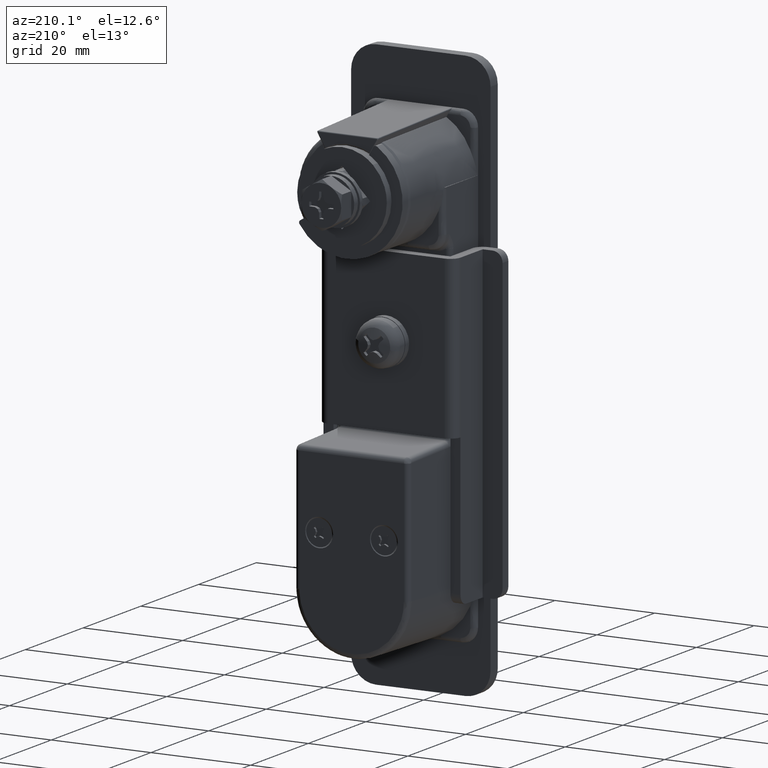
[diagram: clean part render]
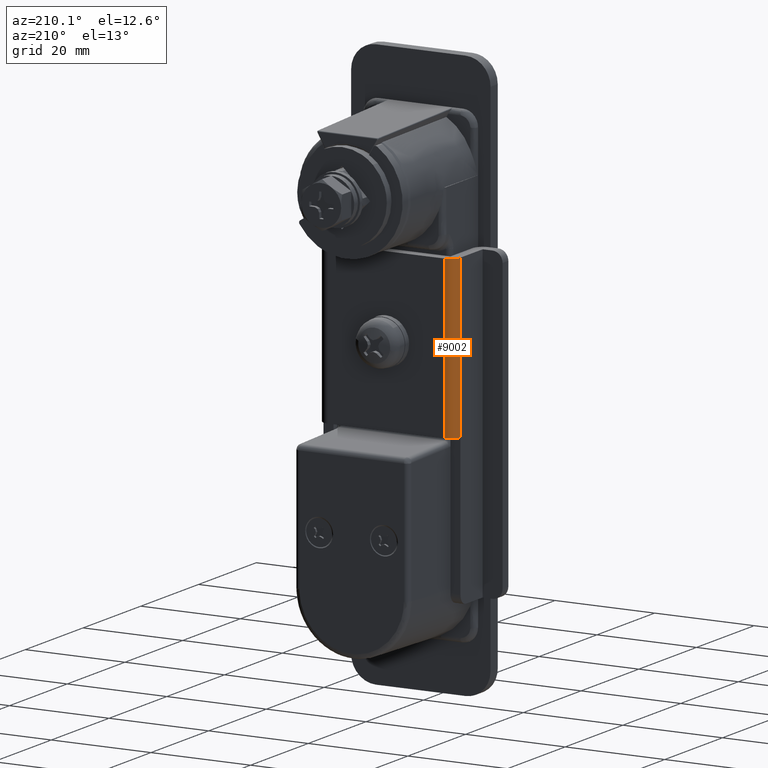
[diagram: same view with one face highlighted and labeled with its STEP entity id]
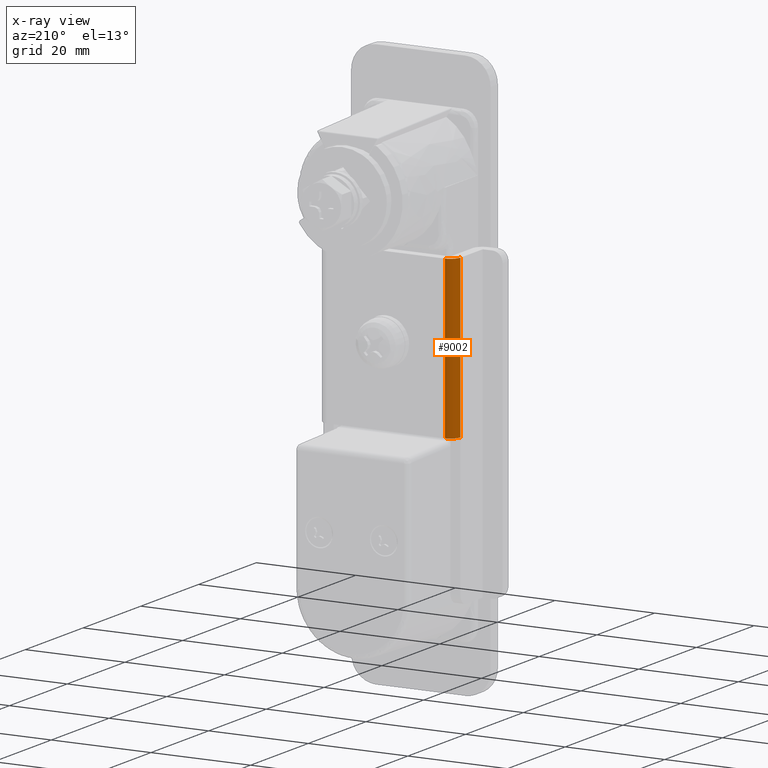
[diagram: x-ray of the same camera — body ghosted, the highlighted face saturated]
A machine part, auxiliary view. The second image highlights one B-rep face of the part: STEP entity #9002.
The next image is the same camera in x-ray: the body ghosted, the highlighted face saturated — about 0% of this face is hidden behind the body in this view.
In plain terms, the highlighted face is a freeform B-spline surface patch.
Its self-contained STEP definition (entity closure, byte-faithful):
#8731=CARTESIAN_POINT('',(-13.749599999999999,10.999994665527341,-44.500000000000000));
#8732=VERTEX_POINT('',#8731);
#8757=CARTESIAN_POINT('',(-13.749600000000120,10.999994665527341,-12.500000000000000));
#8758=VERTEX_POINT('',#8757);
#8764=CARTESIAN_POINT('',(-13.749599999999999,10.999994665527341,-44.500000000000000));
#8765=CARTESIAN_POINT('',(-13.749600000000120,10.999994665527341,-12.500000000000000));
#8766=QUASI_UNIFORM_CURVE('',1,(#8764,#8765),.UNSPECIFIED.,.F.,.U.);
#8767=EDGE_CURVE('',#8732,#8758,#8766,.T.);
#8953=CARTESIAN_POINT('',(-13.748914649951230,10.947640768911601,-45.300000000000011));
#8954=CARTESIAN_POINT('',(-13.748914649951230,10.947640768911601,-11.680000000000000));
#8955=CARTESIAN_POINT('',(-13.806584520332637,13.149964266636786,-45.300000000000004));
#8956=CARTESIAN_POINT('',(-13.806584520332637,13.149964266636786,-11.680000000000000));
#8957=CARTESIAN_POINT('',(-11.608959848748146,12.995043624288968,-45.300000000000011));
#8958=CARTESIAN_POINT('',(-11.608959848748146,12.995043624288968,-11.680000000000003));
#8966=(BOUNDED_SURFACE()B_SPLINE_SURFACE(1,2,((#8953,#8955,#8957),(#8954,#8956,#8958)),.UNSPECIFIED.,.F.,.F.,.U.)B_SPLINE_SURFACE_WITH_KNOTS((2,2),(3,3),(0.0,33.620000000000012),(0.0,3.542284688176743),.UNSPECIFIED.)GEOMETRIC_REPRESENTATION_ITEM()RATIONAL_B_SPLINE_SURFACE(((1.0,0.670944223154768,0.996392648609106),(1.0,0.670944223154768,0.996392648609106)))REPRESENTATION_ITEM('')SURFACE());
#8967=CARTESIAN_POINT('',(-11.749600000000120,12.999994665527341,-44.500000000000000));
#8968=VERTEX_POINT('',#8967);
#8969=CARTESIAN_POINT('',(-11.749600000000120,12.999994665527341,-12.500000000000000));
#8970=VERTEX_POINT('',#8969);
#8971=CARTESIAN_POINT('',(-11.749600000000120,12.999994665527341,-44.500000000000000));
#8972=CARTESIAN_POINT('',(-11.749600000000120,12.999994665527341,-12.500000000000000));
#8973=QUASI_UNIFORM_CURVE('',1,(#8971,#8972),.UNSPECIFIED.,.F.,.U.);
#8974=EDGE_CURVE('',#8968,#8970,#8973,.T.);
#8975=ORIENTED_EDGE('',*,*,#8974,.F.);
#8976=CARTESIAN_POINT('',(-11.749600000000120,12.999994665527341,-44.500000000000000));
#8977=CARTESIAN_POINT('',(-11.995075775342160,13.000219803783180,-44.500000000000007));
#8978=CARTESIAN_POINT('',(-12.387592611964241,12.926736629066710,-44.500000000000057));
#8979=CARTESIAN_POINT('',(-12.899045135724410,12.661371421685910,-44.499999999999943));
#8980=CARTESIAN_POINT('',(-13.294925219328320,12.311408009139781,-44.499999999999993));
#8981=CARTESIAN_POINT('',(-13.648911655863991,11.752418812758879,-44.500000000000377));
#8982=CARTESIAN_POINT('',(-13.749973906542129,11.278223226658060,-44.499999999999737));
#8983=CARTESIAN_POINT('',(-13.749599999999999,10.999994665527341,-44.500000000000000));
#8984=B_SPLINE_CURVE_WITH_KNOTS('',3,(#8976,#8977,#8978,#8979,#8980,#8981,#8982,#8983),.UNSPECIFIED.,.F.,.U.,(4,1,1,1,1,4),(0.000000245823713,0.736328048652684,1.178135019086552,1.718067132761312,2.307162978441432,3.141671488692455),.UNSPECIFIED.);
#8985=EDGE_CURVE('',#8968,#8732,#8984,.T.);
#8986=ORIENTED_EDGE('',*,*,#8985,.T.);
#8987=ORIENTED_EDGE('',*,*,#8767,.T.);
#8988=CARTESIAN_POINT('',(-11.749600000000120,12.999994665527341,-12.500000000000000));
#8989=CARTESIAN_POINT('',(-11.945959806938840,13.000086789903531,-12.500000000000000));
#8990=CARTESIAN_POINT('',(-12.273156105260570,12.951392037747951,-12.499999999999980));
#8991=CARTESIAN_POINT('',(-12.698469601443090,12.775203561944741,-12.500000000000030));
#8992=CARTESIAN_POINT('',(-13.081285968057079,12.519476452881360,-12.499999999999989));
#8993=CARTESIAN_POINT('',(-13.436796551385120,12.127352206559470,-12.500000000000041));
#8994=CARTESIAN_POINT('',(-13.691311662803081,11.588998134906310,-12.499999999999931));
#8995=CARTESIAN_POINT('',(-13.749682528119241,11.196353337463719,-12.500000000000041));
#8996=CARTESIAN_POINT('',(-13.749600000000120,10.999994665527341,-12.500000000000000));
#8997=B_SPLINE_CURVE_WITH_KNOTS('',3,(#8988,#8989,#8990,#8991,#8992,#8993,#8994,#8995,#8996),.UNSPECIFIED.,.F.,.U.,(4,1,1,1,1,1,4),(0.000000245824276,0.589062409939212,0.981776154988352,1.374490663390264,1.963538902263275,2.552610025859092,3.141671488692613),.UNSPECIFIED.);
#8998=EDGE_CURVE('',#8970,#8758,#8997,.T.);
#8999=ORIENTED_EDGE('',*,*,#8998,.F.);
#9000=EDGE_LOOP('',(#8975,#8986,#8987,#8999));
#9001=FACE_OUTER_BOUND('',#9000,.T.);
#9002=ADVANCED_FACE('',(#9001),#8966,.T.);